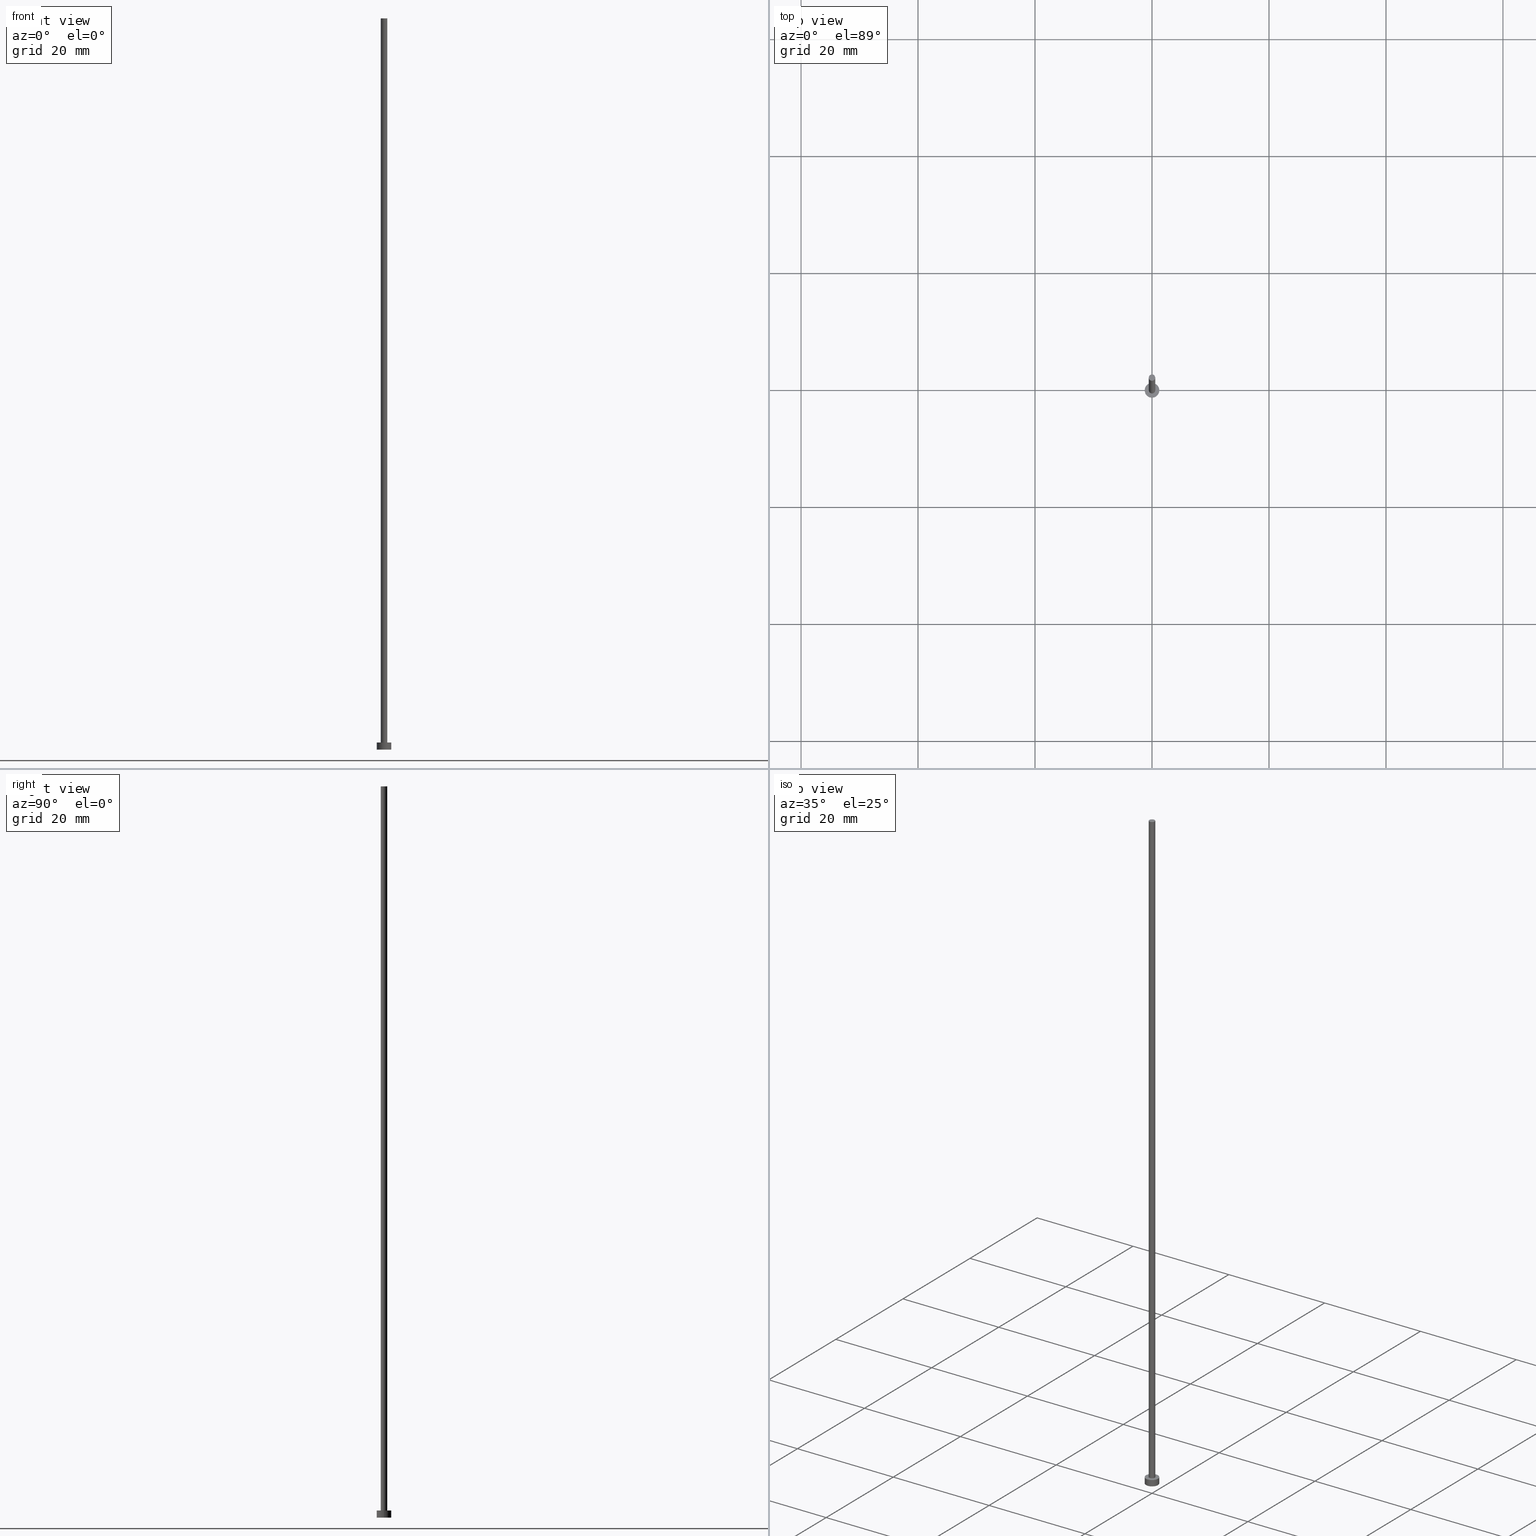
[diagram: canonical four-view strip — front | top / right | iso, engineering-drawing reading convention]
A machine part, canonical four-view strip (front | top / right | iso — engineering-drawing reading convention). The complete STEP part file that produces these views, byte-faithful:
ISO-10303-21;
HEADER;
FILE_DESCRIPTION (( 'STEP AP203' ),
    '1' );
FILE_NAME ('0595.STEP',
    '2023-02-13T15:27:33',
    ( '' ),
    ( '' ),
    'SwSTEP 2.0',
    'SolidWorks 2019',
    '' );
FILE_SCHEMA (( 'CONFIG_CONTROL_DESIGN' ));
ENDSEC;

DATA;
#1 = CARTESIAN_POINT ( 'NONE',  ( -1.250000000000000000, 0.000000000000000000, 1.199999999999999956 ) ) ;
#2 = LOCAL_TIME ( 16, 27, 33.00000000000000000, #57 ) ;
#3 = CC_DESIGN_PERSON_AND_ORGANIZATION_ASSIGNMENT ( #189, #107, ( #211 ) ) ;
#4 = PERSON ( 'NEUR�EN�', 'NEUR�EN�', 'NEUR�EN�', ('NEUR�EN�'), ('NEUR�EN�'), ('NEUR�EN�') ) ;
#5 = CARTESIAN_POINT ( 'NONE',  ( -1.250000000000000000, 0.000000000000000000, 0.000000000000000000 ) ) ;
#6 =( LENGTH_UNIT ( ) NAMED_UNIT ( * ) SI_UNIT ( .MILLI., .METRE. ) );
#7 = AXIS2_PLACEMENT_3D ( 'NONE', #221, #201, #121 ) ;
#8 = PERSON_AND_ORGANIZATION ( #4, #147 ) ;
#9 = DIRECTION ( 'NONE',  ( 1.000000000000000000, 0.000000000000000000, 0.000000000000000000 ) ) ;
#10 = ADVANCED_FACE ( 'NONE', ( #246 ), #75, .T. ) ;
#11 = DIRECTION ( 'NONE',  ( 1.000000000000000000, 0.000000000000000000, 0.000000000000000000 ) ) ;
#12 = PRODUCT ( '0595', '0595', '', ( #226 ) ) ;
#13 = AXIS2_PLACEMENT_3D ( 'NONE', #102, #25, #103 ) ;
#14 = CIRCLE ( 'NONE', #108, 1.250000000000000000 ) ;
#15 = PERSON_AND_ORGANIZATION ( #4, #147 ) ;
#16 = EDGE_CURVE ( 'NONE', #134, #174, #196, .T. ) ;
#17 = ORIENTED_EDGE ( 'NONE', *, *, #77, .T. ) ;
#18 = LOCAL_TIME ( 16, 27, 33.00000000000000000, #106 ) ;
#19 = ORIENTED_EDGE ( 'NONE', *, *, #16, .F. ) ;
#20 = ORIENTED_EDGE ( 'NONE', *, *, #162, .F. ) ;
#21 = CYLINDRICAL_SURFACE ( 'NONE', #7, 1.250000000000000000 ) ;
#22 = CARTESIAN_POINT ( 'NONE',  ( 0.5500000000000000444, 6.735557395310442516E-17, 1.199999999999999956 ) ) ;
#23 = ADVANCED_FACE ( 'NONE', ( #44 ), #82, .T. ) ;
#24 = DIRECTION ( 'NONE',  ( 0.000000000000000000, 0.000000000000000000, 1.000000000000000000 ) ) ;
#25 = DIRECTION ( 'NONE',  ( 0.000000000000000000, 0.000000000000000000, 1.000000000000000000 ) ) ;
#26 = AXIS2_PLACEMENT_3D ( 'NONE', #251, #198, #237 ) ;
#27 = DIRECTION ( 'NONE',  ( -0.000000000000000000, -0.000000000000000000, -1.000000000000000000 ) ) ;
#28 = AXIS2_PLACEMENT_3D ( 'NONE', #101, #253, #255 ) ;
#29 = APPROVAL_STATUS ( 'not_yet_approved' ) ;
#30 = CC_DESIGN_DATE_AND_TIME_ASSIGNMENT ( #152, #34, ( #211 ) ) ;
#31 = CARTESIAN_POINT ( 'NONE',  ( 0.000000000000000000, 0.000000000000000000, 1.199999999999999956 ) ) ;
#32 = APPROVAL_ROLE ( '' ) ;
#33 = ADVANCED_FACE ( 'NONE', ( #139 ), #184, .F. ) ;
#34 = DATE_TIME_ROLE ( 'classification_date' ) ;
#35 = CC_DESIGN_APPROVAL ( #176, ( #171 ) ) ;
#36 = ORIENTED_EDGE ( 'NONE', *, *, #16, .T. ) ;
#37 = DIRECTION ( 'NONE',  ( -0.000000000000000000, -0.000000000000000000, -1.000000000000000000 ) ) ;
#38 = VERTEX_POINT ( 'NONE', #183 ) ;
#39 = PRODUCT_RELATED_PRODUCT_CATEGORY ( 'detail', '', ( #12 ) ) ;
#40 = APPROVAL_PERSON_ORGANIZATION ( #15, #43, #111 ) ;
#41 = EDGE_LOOP ( 'NONE', ( #216, #247 ) ) ;
#42 = DIRECTION ( 'NONE',  ( 0.000000000000000000, 0.000000000000000000, 1.000000000000000000 ) ) ;
#43 = APPROVAL ( #244, 'NEUR�EN�' ) ;
#44 = FACE_OUTER_BOUND ( 'NONE', #97, .T. ) ;
#45 = VECTOR ( 'NONE', #27, 1000.000000000000000 ) ;
#46 = DIRECTION ( 'NONE',  ( 1.000000000000000000, 0.000000000000000000, -0.000000000000000000 ) ) ;
#47 = CIRCLE ( 'NONE', #172, 1.250000000000000000 ) ;
#48 = FACE_BOUND ( 'NONE', #41, .T. ) ;
#49 = LINE ( 'NONE', #144, #136 ) ;
#50 = CIRCLE ( 'NONE', #26, 0.5500000000000000444 ) ;
#51 = PERSON_AND_ORGANIZATION ( #4, #147 ) ;
#52 = LOCAL_TIME ( 16, 27, 33.00000000000000000, #209 ) ;
#53 = PERSON_AND_ORGANIZATION ( #4, #147 ) ;
#54 = EDGE_CURVE ( 'NONE', #210, #112, #49, .T. ) ;
#55 = APPLICATION_PROTOCOL_DEFINITION ( 'international standard', 'config_control_design', 1994, #175 ) ;
#56 = PERSON_AND_ORGANIZATION_ROLE ( 'creator' ) ;
#57 = COORDINATED_UNIVERSAL_TIME_OFFSET ( 1, 0, .AHEAD. ) ;
#58 = APPROVAL_DATE_TIME ( #229, #43 ) ;
#59 = ORIENTED_EDGE ( 'NONE', *, *, #236, .F. ) ;
#60 = ORIENTED_EDGE ( 'NONE', *, *, #241, .F. ) ;
#61 = EDGE_CURVE ( 'NONE', #112, #174, #110, .T. ) ;
#62 = ORIENTED_EDGE ( 'NONE', *, *, #232, .T. ) ;
#63 = ORIENTED_EDGE ( 'NONE', *, *, #236, .T. ) ;
#64 = FACE_OUTER_BOUND ( 'NONE', #137, .T. ) ;
#65 = FACE_OUTER_BOUND ( 'NONE', #115, .T. ) ;
#66 = DIRECTION ( 'NONE',  ( -0.000000000000000000, -0.000000000000000000, -1.000000000000000000 ) ) ;
#67 = AXIS2_PLACEMENT_3D ( 'NONE', #169, #130, #69 ) ;
#68 = CARTESIAN_POINT ( 'NONE',  ( 0.000000000000000000, 0.000000000000000000, 125.0000000000000000 ) ) ;
#69 = DIRECTION ( 'NONE',  ( 1.000000000000000000, 0.000000000000000000, 0.000000000000000000 ) ) ;
#70 = CC_DESIGN_APPROVAL ( #132, ( #87 ) ) ;
#71 = PERSON_AND_ORGANIZATION_ROLE ( 'design_owner' ) ;
#72 = SHAPE_DEFINITION_REPRESENTATION ( #194, #249 ) ;
#73 = ORIENTED_EDGE ( 'NONE', *, *, #241, .T. ) ;
#74 = VECTOR ( 'NONE', #223, 1000.000000000000000 ) ;
#75 = CYLINDRICAL_SURFACE ( 'NONE', #123, 0.5500000000000000444 ) ;
#76 = AXIS2_PLACEMENT_3D ( 'NONE', #185, #170, #90 ) ;
#77 = EDGE_CURVE ( 'NONE', #210, #134, #50, .T. ) ;
#78 = UNCERTAINTY_MEASURE_WITH_UNIT (LENGTH_MEASURE( 1.000000000000000082E-05 ), #6, 'distance_accuracy_value', 'NONE');
#79 = ORIENTED_EDGE ( 'NONE', *, *, #197, .T. ) ;
#80 = EDGE_LOOP ( 'NONE', ( #19, #215, #95, #113 ) ) ;
#81 = CIRCLE ( 'NONE', #155, 0.5500000000000000444 ) ;
#82 = CYLINDRICAL_SURFACE ( 'NONE', #243, 0.5500000000000000444 ) ;
#83 = DIRECTION ( 'NONE',  ( 0.000000000000000000, 0.000000000000000000, 1.000000000000000000 ) ) ;
#84 = CARTESIAN_POINT ( 'NONE',  ( -0.5500000000000000444, 0.000000000000000000, 125.0000000000000000 ) ) ;
#85 = EDGE_CURVE ( 'NONE', #195, #135, #180, .T. ) ;
#86 = FACE_OUTER_BOUND ( 'NONE', #212, .T. ) ;
#87 = PRODUCT_DEFINITION_FORMATION_WITH_SPECIFIED_SOURCE ( 'LIBOVOLN�', '', #12, .NOT_KNOWN. ) ;
#88 = DIRECTION ( 'NONE',  ( -0.000000000000000000, -0.000000000000000000, -1.000000000000000000 ) ) ;
#89 = CC_DESIGN_PERSON_AND_ORGANIZATION_ASSIGNMENT ( #228, #148, ( #171 ) ) ;
#90 = DIRECTION ( 'NONE',  ( 1.000000000000000000, 0.000000000000000000, 0.000000000000000000 ) ) ;
#91 = DIRECTION ( 'NONE',  ( 0.000000000000000000, 0.000000000000000000, 1.000000000000000000 ) ) ;
#92 = APPROVAL_STATUS ( 'not_yet_approved' ) ;
#93 = CALENDAR_DATE ( 2023, 13, 2 ) ;
#94 = ORIENTED_EDGE ( 'NONE', *, *, #213, .T. ) ;
#95 = ORIENTED_EDGE ( 'NONE', *, *, #54, .T. ) ;
#96 = CC_DESIGN_APPROVAL ( #43, ( #211 ) ) ;
#97 = EDGE_LOOP ( 'NONE', ( #59, #36, #79, #117 ) ) ;
#98 = CC_DESIGN_PERSON_AND_ORGANIZATION_ASSIGNMENT ( #53, #71, ( #12 ) ) ;
#99 = ORIENTED_EDGE ( 'NONE', *, *, #162, .T. ) ;
#100 = DIRECTION ( 'NONE',  ( -0.000000000000000000, -0.000000000000000000, -1.000000000000000000 ) ) ;
#101 = CARTESIAN_POINT ( 'NONE',  ( 0.000000000000000000, 0.000000000000000000, 1.199999999999999956 ) ) ;
#102 = CARTESIAN_POINT ( 'NONE',  ( 0.000000000000000000, 0.000000000000000000, 0.000000000000000000 ) ) ;
#103 = DIRECTION ( 'NONE',  ( 1.000000000000000000, 0.000000000000000000, -0.000000000000000000 ) ) ;
#104 = CARTESIAN_POINT ( 'NONE',  ( 0.000000000000000000, 0.000000000000000000, 0.000000000000000000 ) ) ;
#105 = ADVANCED_FACE ( 'NONE', ( #86 ), #21, .T. ) ;
#106 = COORDINATED_UNIVERSAL_TIME_OFFSET ( 1, 0, .AHEAD. ) ;
#107 = PERSON_AND_ORGANIZATION_ROLE ( 'classification_officer' ) ;
#108 = AXIS2_PLACEMENT_3D ( 'NONE', #31, #127, #9 ) ;
#109 = CARTESIAN_POINT ( 'NONE',  ( 1.250000000000000000, 1.530808498934191571E-16, 1.199999999999999956 ) ) ;
#110 = CIRCLE ( 'NONE', #230, 0.5500000000000000444 ) ;
#111 = APPROVAL_ROLE ( '' ) ;
#112 = VERTEX_POINT ( 'NONE', #122 ) ;
#113 = ORIENTED_EDGE ( 'NONE', *, *, #61, .T. ) ;
#114 = DIRECTION ( 'NONE',  ( -1.000000000000000000, 0.000000000000000000, 0.000000000000000000 ) ) ;
#115 = EDGE_LOOP ( 'NONE', ( #17, #63 ) ) ;
#116 = APPROVAL_PERSON_ORGANIZATION ( #168, #132, #207 ) ;
#117 = ORIENTED_EDGE ( 'NONE', *, *, #54, .F. ) ;
#118 = DIRECTION ( 'NONE',  ( 1.000000000000000000, 0.000000000000000000, 0.000000000000000000 ) ) ;
#119 = CARTESIAN_POINT ( 'NONE',  ( 0.000000000000000000, 0.000000000000000000, 1.199999999999999956 ) ) ;
#120 = CARTESIAN_POINT ( 'NONE',  ( -1.250000000000000000, 0.000000000000000000, 1.199999999999999956 ) ) ;
#121 = DIRECTION ( 'NONE',  ( -1.000000000000000000, 0.000000000000000000, 0.000000000000000000 ) ) ;
#122 = CARTESIAN_POINT ( 'NONE',  ( -0.5500000000000000444, 0.000000000000000000, 1.199999999999999956 ) ) ;
#123 = AXIS2_PLACEMENT_3D ( 'NONE', #154, #37, #114 ) ;
#124 = PERSON_AND_ORGANIZATION_ROLE ( 'design_supplier' ) ;
#125 = APPLICATION_PROTOCOL_DEFINITION ( 'international standard', 'config_control_design', 1994, #188 ) ;
#126 = DATE_AND_TIME ( #205, #18 ) ;
#127 = DIRECTION ( 'NONE',  ( 0.000000000000000000, 0.000000000000000000, 1.000000000000000000 ) ) ;
#128 = AXIS2_PLACEMENT_3D ( 'NONE', #217, #42, #118 ) ;
#129 = CC_DESIGN_PERSON_AND_ORGANIZATION_ASSIGNMENT ( #8, #56, ( #87 ) ) ;
#130 = DIRECTION ( 'NONE',  ( 0.000000000000000000, 0.000000000000000000, 1.000000000000000000 ) ) ;
#131 = CALENDAR_DATE ( 2023, 13, 2 ) ;
#132 = APPROVAL ( #29, 'NEUR�EN�' ) ;
#133 = EDGE_LOOP ( 'NONE', ( #60, #153 ) ) ;
#134 = VERTEX_POINT ( 'NONE', #158 ) ;
#135 = VERTEX_POINT ( 'NONE', #5 ) ;
#136 = VECTOR ( 'NONE', #66, 1000.000000000000000 ) ;
#137 = EDGE_LOOP ( 'NONE', ( #62, #214 ) ) ;
#138 = DIRECTION ( 'NONE',  ( 1.000000000000000000, 0.000000000000000000, 0.000000000000000000 ) ) ;
#139 = FACE_OUTER_BOUND ( 'NONE', #133, .T. ) ;
#140 = ADVANCED_FACE ( 'NONE', ( #48, #64 ), #159, .T. ) ;
#141 = AXIS2_PLACEMENT_3D ( 'NONE', #68, #219, #46 ) ;
#142 = PLANE ( 'NONE',  #141 ) ;
#143 = CC_DESIGN_SECURITY_CLASSIFICATION ( #211, ( #87 ) ) ;
#144 = CARTESIAN_POINT ( 'NONE',  ( -0.5500000000000000444, 0.000000000000000000, 125.0000000000000000 ) ) ;
#145 = DIRECTION ( 'NONE',  ( 1.000000000000000000, 0.000000000000000000, 0.000000000000000000 ) ) ;
#146 = DATE_TIME_ROLE ( 'creation_date' ) ;
#147 = ORGANIZATION ( 'NEUR�EN�', 'NEUR�EN�', '' ) ;
#148 = PERSON_AND_ORGANIZATION_ROLE ( 'creator' ) ;
#149 = APPROVAL_DATE_TIME ( #126, #176 ) ;
#150 = PERSON_AND_ORGANIZATION ( #4, #147 ) ;
#151 = LOCAL_TIME ( 16, 27, 33.00000000000000000, #193 ) ;
#152 = DATE_AND_TIME ( #131, #151 ) ;
#153 = ORIENTED_EDGE ( 'NONE', *, *, #213, .F. ) ;
#154 = CARTESIAN_POINT ( 'NONE',  ( 0.000000000000000000, 0.000000000000000000, 125.0000000000000000 ) ) ;
#155 = AXIS2_PLACEMENT_3D ( 'NONE', #203, #24, #145 ) ;
#156 = ORIENTED_EDGE ( 'NONE', *, *, #254, .F. ) ;
#157 = ORIENTED_EDGE ( 'NONE', *, *, #232, .F. ) ;
#158 = CARTESIAN_POINT ( 'NONE',  ( 0.5500000000000000444, 6.735557395310442516E-17, 125.0000000000000000 ) ) ;
#159 = PLANE ( 'NONE',  #199 ) ;
#160 = DIRECTION ( 'NONE',  ( 0.000000000000000000, 0.000000000000000000, 1.000000000000000000 ) ) ;
#161 =( GEOMETRIC_REPRESENTATION_CONTEXT ( 3 ) GLOBAL_UNCERTAINTY_ASSIGNED_CONTEXT ( ( #78 ) ) GLOBAL_UNIT_ASSIGNED_CONTEXT ( ( #6, #166, #165 ) ) REPRESENTATION_CONTEXT ( 'NONE', 'WORKASPACE' ) );
#162 = EDGE_CURVE ( 'NONE', #248, #38, #218, .T. ) ;
#163 = FACE_OUTER_BOUND ( 'NONE', #173, .T. ) ;
#164 = DIRECTION ( 'NONE',  ( 1.000000000000000000, 0.000000000000000000, -0.000000000000000000 ) ) ;
#165 =( NAMED_UNIT ( * ) SI_UNIT ( $, .STERADIAN. ) SOLID_ANGLE_UNIT ( ) );
#166 =( NAMED_UNIT ( * ) PLANE_ANGLE_UNIT ( ) SI_UNIT ( $, .RADIAN. ) );
#167 = CC_DESIGN_PERSON_AND_ORGANIZATION_ASSIGNMENT ( #51, #124, ( #87 ) ) ;
#168 = PERSON_AND_ORGANIZATION ( #4, #147 ) ;
#169 = CARTESIAN_POINT ( 'NONE',  ( 0.000000000000000000, 0.000000000000000000, 0.000000000000000000 ) ) ;
#170 = DIRECTION ( 'NONE',  ( 0.000000000000000000, 0.000000000000000000, 1.000000000000000000 ) ) ;
#171 = PRODUCT_DEFINITION ( 'NEZN�M�', '', #87, #181 ) ;
#172 = AXIS2_PLACEMENT_3D ( 'NONE', #104, #160, #138 ) ;
#173 = EDGE_LOOP ( 'NONE', ( #156, #99, #94, #231 ) ) ;
#174 = VERTEX_POINT ( 'NONE', #22 ) ;
#175 = APPLICATION_CONTEXT ( 'configuration controlled 3d designs of mechanical parts and assemblies' ) ;
#176 = APPROVAL ( #92, 'NEUR�EN�' ) ;
#177 = DIRECTION ( 'NONE',  ( 0.000000000000000000, 0.000000000000000000, 1.000000000000000000 ) ) ;
#178 = LOCAL_TIME ( 16, 27, 33.00000000000000000, #186 ) ;
#179 = CARTESIAN_POINT ( 'NONE',  ( 0.000000000000000000, 0.000000000000000000, 1.199999999999999956 ) ) ;
#180 = LINE ( 'NONE', #1, #250 ) ;
#181 = DESIGN_CONTEXT ( 'detailed design', #188, 'design' ) ;
#182 = CLOSED_SHELL ( 'NONE', ( #23, #187, #105, #140, #33, #10, #191 ) ) ;
#183 = CARTESIAN_POINT ( 'NONE',  ( 1.250000000000000000, 1.530808498934191571E-16, 0.000000000000000000 ) ) ;
#184 = PLANE ( 'NONE',  #13 ) ;
#185 = CARTESIAN_POINT ( 'NONE',  ( 0.000000000000000000, 0.000000000000000000, 125.0000000000000000 ) ) ;
#186 = COORDINATED_UNIVERSAL_TIME_OFFSET ( 1, 0, .AHEAD. ) ;
#187 = ADVANCED_FACE ( 'NONE', ( #163 ), #235, .T. ) ;
#188 = APPLICATION_CONTEXT ( 'configuration controlled 3d designs of mechanical parts and assemblies' ) ;
#189 = PERSON_AND_ORGANIZATION ( #4, #147 ) ;
#190 = CARTESIAN_POINT ( 'NONE',  ( 0.000000000000000000, 0.000000000000000000, 0.000000000000000000 ) ) ;
#191 = ADVANCED_FACE ( 'NONE', ( #65 ), #142, .T. ) ;
#192 = APPROVAL_DATE_TIME ( #242, #132 ) ;
#193 = COORDINATED_UNIVERSAL_TIME_OFFSET ( 1, 0, .AHEAD. ) ;
#194 = PRODUCT_DEFINITION_SHAPE ( 'NONE', 'NONE',  #171 ) ;
#195 = VERTEX_POINT ( 'NONE', #120 ) ;
#196 = LINE ( 'NONE', #239, #74 ) ;
#197 = EDGE_CURVE ( 'NONE', #174, #112, #81, .T. ) ;
#198 = DIRECTION ( 'NONE',  ( 0.000000000000000000, 0.000000000000000000, 1.000000000000000000 ) ) ;
#199 = AXIS2_PLACEMENT_3D ( 'NONE', #179, #83, #164 ) ;
#200 = DIRECTION ( 'NONE',  ( -1.000000000000000000, 0.000000000000000000, 0.000000000000000000 ) ) ;
#201 = DIRECTION ( 'NONE',  ( -0.000000000000000000, -0.000000000000000000, -1.000000000000000000 ) ) ;
#202 = CARTESIAN_POINT ( 'NONE',  ( 0.000000000000000000, 0.000000000000000000, 125.0000000000000000 ) ) ;
#203 = CARTESIAN_POINT ( 'NONE',  ( 0.000000000000000000, 0.000000000000000000, 1.199999999999999956 ) ) ;
#204 = CALENDAR_DATE ( 2023, 13, 2 ) ;
#205 = CALENDAR_DATE ( 2023, 13, 2 ) ;
#206 = SECURITY_CLASSIFICATION_LEVEL ( 'unclassified' ) ;
#207 = APPROVAL_ROLE ( '' ) ;
#208 = MANIFOLD_SOLID_BREP ( 'P�idat vysunut�m3', #182 ) ;
#209 = COORDINATED_UNIVERSAL_TIME_OFFSET ( 1, 0, .AHEAD. ) ;
#210 = VERTEX_POINT ( 'NONE', #84 ) ;
#211 = SECURITY_CLASSIFICATION ( '', '', #206 ) ;
#212 = EDGE_LOOP ( 'NONE', ( #20, #157, #245, #73 ) ) ;
#213 = EDGE_CURVE ( 'NONE', #38, #135, #47, .T. ) ;
#214 = ORIENTED_EDGE ( 'NONE', *, *, #254, .T. ) ;
#215 = ORIENTED_EDGE ( 'NONE', *, *, #77, .F. ) ;
#216 = ORIENTED_EDGE ( 'NONE', *, *, #61, .F. ) ;
#217 = CARTESIAN_POINT ( 'NONE',  ( 0.000000000000000000, 0.000000000000000000, 1.199999999999999956 ) ) ;
#218 = LINE ( 'NONE', #240, #45 ) ;
#219 = DIRECTION ( 'NONE',  ( 0.000000000000000000, 0.000000000000000000, 1.000000000000000000 ) ) ;
#220 = CIRCLE ( 'NONE', #67, 1.250000000000000000 ) ;
#221 = CARTESIAN_POINT ( 'NONE',  ( 0.000000000000000000, 0.000000000000000000, 1.199999999999999956 ) ) ;
#222 = CC_DESIGN_DATE_AND_TIME_ASSIGNMENT ( #227, #146, ( #171 ) ) ;
#223 = DIRECTION ( 'NONE',  ( -0.000000000000000000, -0.000000000000000000, -1.000000000000000000 ) ) ;
#224 = CALENDAR_DATE ( 2023, 13, 2 ) ;
#225 = CIRCLE ( 'NONE', #76, 0.5500000000000000444 ) ;
#226 = MECHANICAL_CONTEXT ( 'NONE', #175, 'mechanical' ) ;
#227 = DATE_AND_TIME ( #204, #178 ) ;
#228 = PERSON_AND_ORGANIZATION ( #4, #147 ) ;
#229 = DATE_AND_TIME ( #93, #52 ) ;
#230 = AXIS2_PLACEMENT_3D ( 'NONE', #119, #177, #234 ) ;
#231 = ORIENTED_EDGE ( 'NONE', *, *, #85, .F. ) ;
#232 = EDGE_CURVE ( 'NONE', #195, #248, #233, .T. ) ;
#233 = CIRCLE ( 'NONE', #128, 1.250000000000000000 ) ;
#234 = DIRECTION ( 'NONE',  ( 1.000000000000000000, 0.000000000000000000, 0.000000000000000000 ) ) ;
#235 = CYLINDRICAL_SURFACE ( 'NONE', #28, 1.250000000000000000 ) ;
#236 = EDGE_CURVE ( 'NONE', #134, #210, #225, .T. ) ;
#237 = DIRECTION ( 'NONE',  ( 1.000000000000000000, 0.000000000000000000, 0.000000000000000000 ) ) ;
#238 = APPROVAL_PERSON_ORGANIZATION ( #150, #176, #32 ) ;
#239 = CARTESIAN_POINT ( 'NONE',  ( 0.5500000000000000444, 6.735557395310442516E-17, 125.0000000000000000 ) ) ;
#240 = CARTESIAN_POINT ( 'NONE',  ( 1.250000000000000000, 1.530808498934191571E-16, 1.199999999999999956 ) ) ;
#241 = EDGE_CURVE ( 'NONE', #135, #38, #220, .T. ) ;
#242 = DATE_AND_TIME ( #224, #2 ) ;
#243 = AXIS2_PLACEMENT_3D ( 'NONE', #202, #100, #200 ) ;
#244 = APPROVAL_STATUS ( 'not_yet_approved' ) ;
#245 = ORIENTED_EDGE ( 'NONE', *, *, #85, .T. ) ;
#246 = FACE_OUTER_BOUND ( 'NONE', #80, .T. ) ;
#247 = ORIENTED_EDGE ( 'NONE', *, *, #197, .F. ) ;
#248 = VERTEX_POINT ( 'NONE', #109 ) ;
#249 = ADVANCED_BREP_SHAPE_REPRESENTATION ( '0595', ( #208, #252 ), #161 ) ;
#250 = VECTOR ( 'NONE', #88, 1000.000000000000000 ) ;
#251 = CARTESIAN_POINT ( 'NONE',  ( 0.000000000000000000, 0.000000000000000000, 125.0000000000000000 ) ) ;
#252 = AXIS2_PLACEMENT_3D ( 'NONE', #190, #91, #11 ) ;
#253 = DIRECTION ( 'NONE',  ( -0.000000000000000000, -0.000000000000000000, -1.000000000000000000 ) ) ;
#254 = EDGE_CURVE ( 'NONE', #248, #195, #14, .T. ) ;
#255 = DIRECTION ( 'NONE',  ( -1.000000000000000000, 0.000000000000000000, 0.000000000000000000 ) ) ;
ENDSEC;
END-ISO-10303-21;
